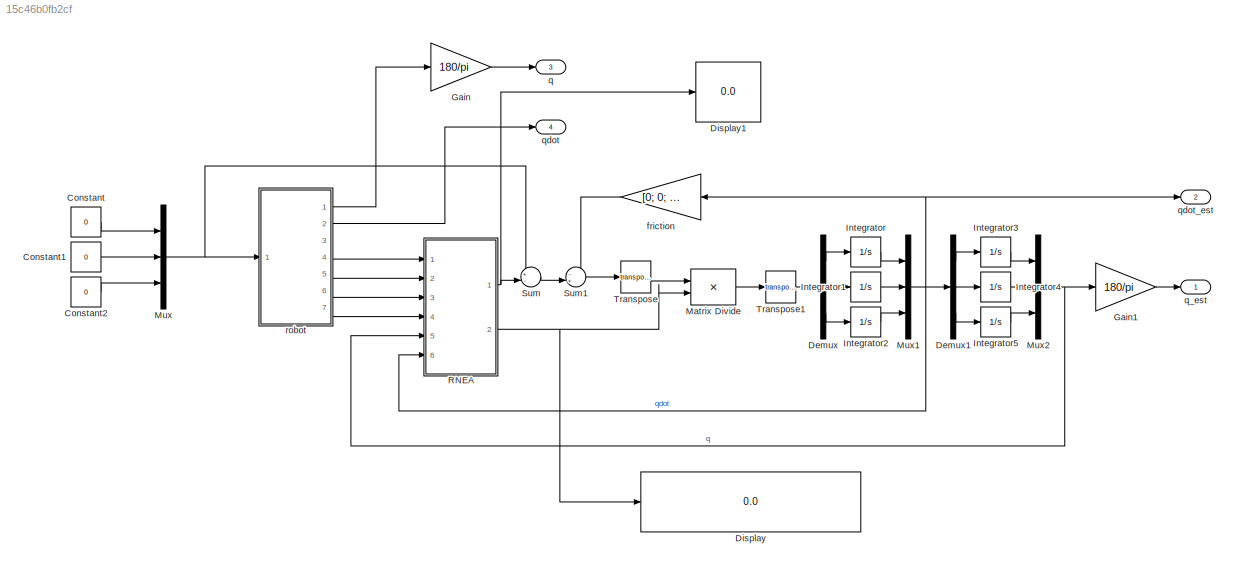
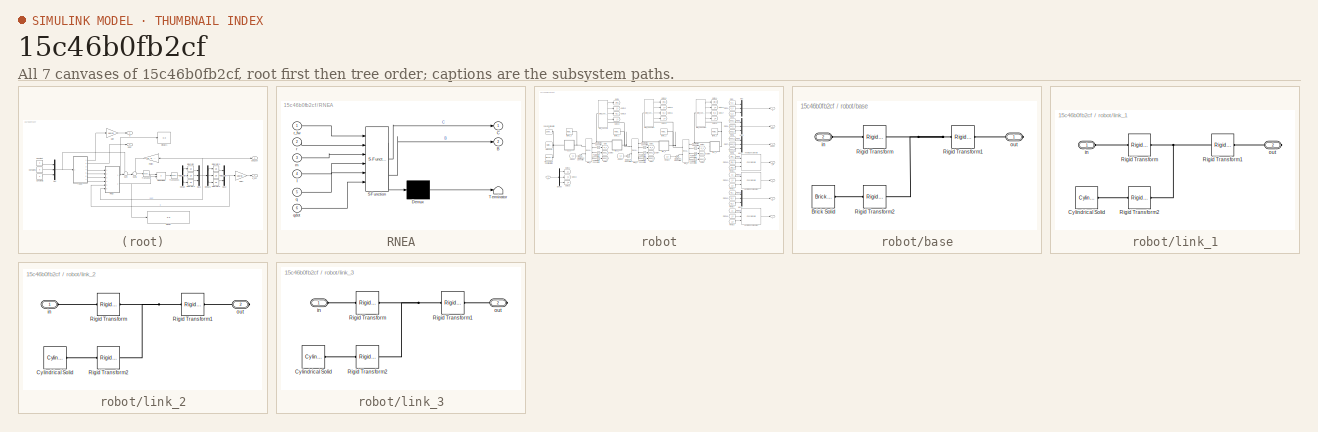
[diagram: thumbnail index - all 7 canvases of the model, root first then tree order]
MODEL slx_15c46b0fb2cf
KIND model
CONFIG AbsTol = 1e-3
CONFIG EnableMultiTasking = on
CONFIG FixedStep = auto
CONFIG InitFcn = parameters;
CONFIG MaxStep = 0.01
CONFIG MinStep = auto
CONFIG RelTol = 1e-3
CONFIG SampleTimeConstraint = Unconstrained
CONFIG SolverName = VariableStepAuto
CONFIG StartTime = 0.0
CONFIG StopTime = 10.0
BLOCK [Constant] Constant
  Value = 0
BLOCK [Constant] Constant1
  Value = 0
BLOCK [Constant] Constant2
  Value = 0
BLOCK [Demux] Demux
  Outputs = 3
  Ports = [1, 3]
BLOCK [Demux] Demux1
  Outputs = 3
  Ports = [1, 3]
BLOCK [Display] Display
  Ports = [1]
BLOCK [Display] Display1
  Ports = [1]
BLOCK [Gain] Gain
  Gain = 180/pi
BLOCK [Gain] Gain1
  Gain = 180/pi
BLOCK [Integrator] Integrator
  Ports = [1, 1]
BLOCK [Integrator] Integrator1
  Ports = [1, 1]
BLOCK [Integrator] Integrator2
  Ports = [1, 1]
BLOCK [Integrator] Integrator3
  InitialCondition = q1_init
  Ports = [1, 1]
BLOCK [Integrator] Integrator4
  InitialCondition = q2_init
  Ports = [1, 1]
BLOCK [Integrator] Integrator5
  InitialCondition = q3_init
  Ports = [1, 1]
BLOCK [Product] Matrix Divide
  Inputs = */
  Multiplication = Matrix(*)
  Ports = [2, 1]
BLOCK [Mux] Mux
  DisplayOption = bar
  Inputs = 3
  Ports = [3, 1]
BLOCK [Mux] Mux1
  DisplayOption = bar
  Inputs = 3
  Ports = [3, 1]
BLOCK [Mux] Mux2
  DisplayOption = bar
  Inputs = 3
  Ports = [3, 1]
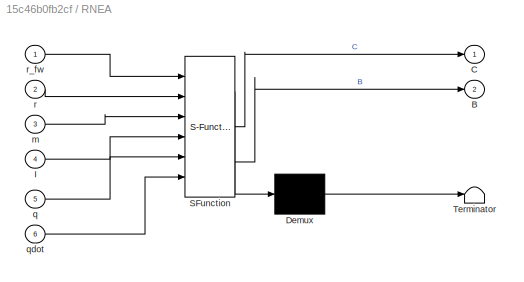
BLOCK [SubSystem] RNEA
  ErrorFcn = Stateflow.Translate.translate
  PermitHierarchicalResolution = ExplicitOnly
  Ports = [6, 2]
  RequestExecContextInheritance = off
  SFBlockType = MATLAB Function
  TreatAsAtomicUnit = on
BLOCK [Demux] RNEA/ Demux 
  Outputs = 1
  Ports = [1, 1]
BLOCK [S-Function] RNEA/ SFunction 
  EnableBusSupport = on
  FunctionName = sf_sfun
  Parameters = g
  PortCounts = [6 3]
  Ports = [6, 3]
  SFcnIsStateOwnerBlock = off
  SFunctionDeploymentMode = off
  Tag = Stateflow S-Function 2
BLOCK [Terminator] RNEA/ Terminator 
BLOCK [Outport] RNEA/B
  Port = 2
BLOCK [Outport] RNEA/C
BLOCK [Inport] RNEA/I
  Port = 4
BLOCK [Inport] RNEA/m
  Port = 3
BLOCK [Inport] RNEA/q
  Port = 5
BLOCK [Inport] RNEA/qdot
  Port = 6
BLOCK [Inport] RNEA/r
  Port = 2
BLOCK [Inport] RNEA/r_fw
BLOCK [Sum] Sum
  Inputs = +-|
  Ports = [2, 1]
BLOCK [Sum] Sum1
  Inputs = -+|
  Ports = [2, 1]
BLOCK [Math] Transpose
  Operator = transpose
  Ports = [1, 1]
BLOCK [Math] Transpose1
  Operator = transpose
  Ports = [1, 1]
BLOCK [Gain] friction
  Gain = [0; 0; 0]
BLOCK [Outport] q
  Port = 3
BLOCK [Outport] q_est
  PortDimensions = [3,1]
BLOCK [Outport] qdot
  Port = 4
BLOCK [Outport] qdot_est
  Port = 2
  PortDimensions = [3,1]
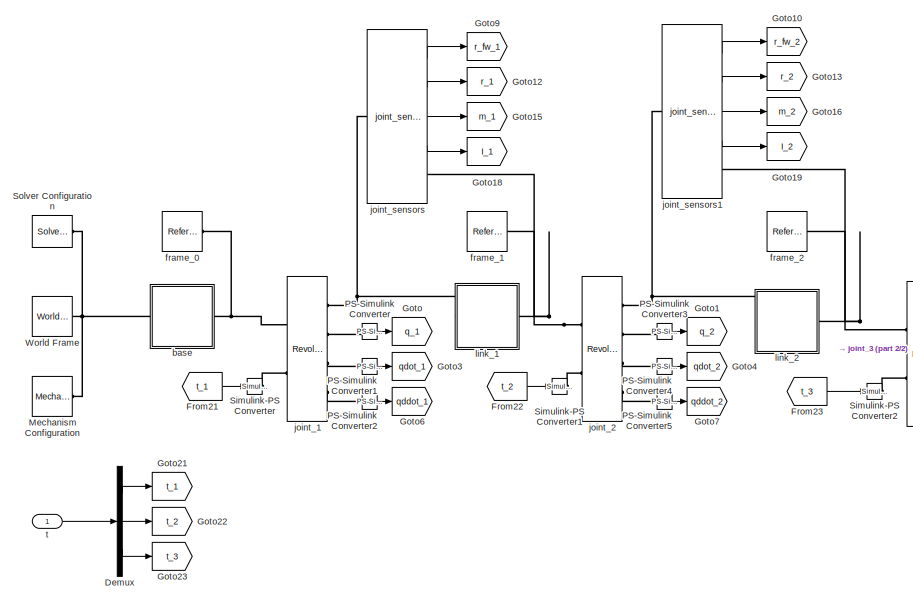
[diagram: robot - part 1/2, middle left region]
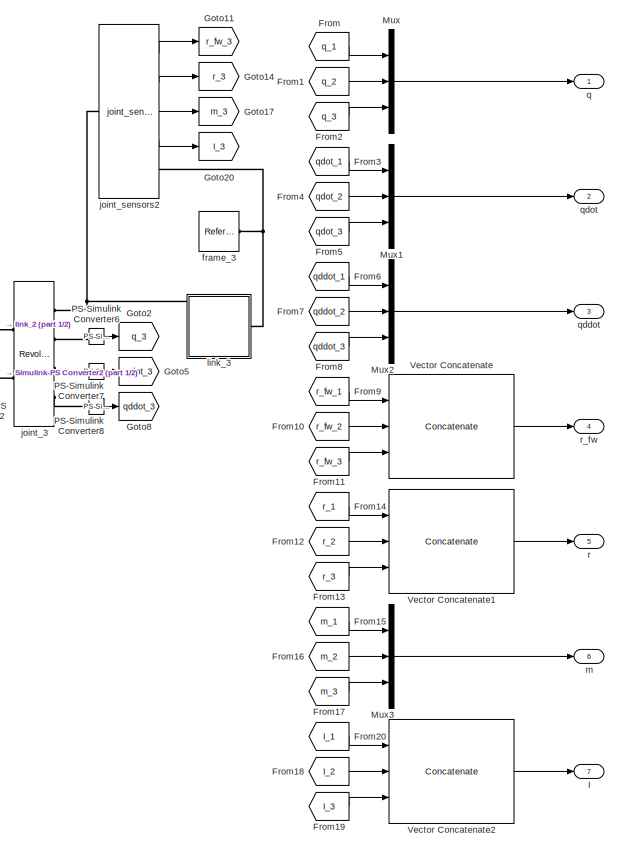
[diagram: robot - part 2/2, right side, full height]
BLOCK [SubSystem] robot
  Ports = [1, 7]
  RequestExecContextInheritance = off
BLOCK [Demux] robot/Demux
  Outputs = 3
  Ports = [1, 3]
BLOCK [From] robot/From
  GotoTag = q_1
BLOCK [From] robot/From1
  GotoTag = q_2
BLOCK [From] robot/From10
  GotoTag = r_fw_2
BLOCK [From] robot/From11
  GotoTag = r_fw_3
BLOCK [From] robot/From12
  GotoTag = r_2
BLOCK [From] robot/From13
  GotoTag = r_3
BLOCK [From] robot/From14
  GotoTag = r_1
BLOCK [From] robot/From15
  GotoTag = m_1
BLOCK [From] robot/From16
  GotoTag = m_2
BLOCK [From] robot/From17
  GotoTag = m_3
BLOCK [From] robot/From18
  GotoTag = I_2
BLOCK [From] robot/From19
  GotoTag = I_3
BLOCK [From] robot/From2
  GotoTag = q_3
BLOCK [From] robot/From20
  GotoTag = I_1
BLOCK [From] robot/From21
  GotoTag = t_1
BLOCK [From] robot/From22
  GotoTag = t_2
BLOCK [From] robot/From23
  GotoTag = t_3
BLOCK [From] robot/From3
  GotoTag = qdot_1
BLOCK [From] robot/From4
  GotoTag = qdot_2
BLOCK [From] robot/From5
  GotoTag = qdot_3
BLOCK [From] robot/From6
  GotoTag = qddot_1
BLOCK [From] robot/From7
  GotoTag = qddot_2
BLOCK [From] robot/From8
  GotoTag = qddot_3
BLOCK [From] robot/From9
  GotoTag = r_fw_1
BLOCK [Goto] robot/Goto
  GotoTag = q_1
BLOCK [Goto] robot/Goto1
  GotoTag = q_2
BLOCK [Goto] robot/Goto10
  GotoTag = r_fw_2
BLOCK [Goto] robot/Goto11
  GotoTag = r_fw_3
BLOCK [Goto] robot/Goto12
  GotoTag = r_1
BLOCK [Goto] robot/Goto13
  GotoTag = r_2
BLOCK [Goto] robot/Goto14
  GotoTag = r_3
BLOCK [Goto] robot/Goto15
  GotoTag = m_1
BLOCK [Goto] robot/Goto16
  GotoTag = m_2
BLOCK [Goto] robot/Goto17
  GotoTag = m_3
BLOCK [Goto] robot/Goto18
  GotoTag = I_1
BLOCK [Goto] robot/Goto19
  GotoTag = I_2
BLOCK [Goto] robot/Goto2
  GotoTag = q_3
BLOCK [Goto] robot/Goto20
  GotoTag = I_3
BLOCK [Goto] robot/Goto21
  GotoTag = t_1
BLOCK [Goto] robot/Goto22
  GotoTag = t_2
BLOCK [Goto] robot/Goto23
  GotoTag = t_3
BLOCK [Goto] robot/Goto3
  GotoTag = qdot_1
BLOCK [Goto] robot/Goto4
  GotoTag = qdot_2
BLOCK [Goto] robot/Goto5
  GotoTag = qdot_3
BLOCK [Goto] robot/Goto6
  GotoTag = qddot_1
BLOCK [Goto] robot/Goto7
  GotoTag = qddot_2
BLOCK [Goto] robot/Goto8
  GotoTag = qddot_3
BLOCK [Goto] robot/Goto9
  GotoTag = r_fw_1
BLOCK [Outport] robot/I
  Port = 7
BLOCK [Reference] robot/Mechanism Configuration  REF=sm_lib/Utilities/Mechanism
Configuration
  Ports = [0, 0, 0, 0, 0, 0, 1]
  SourceBlock = sm_lib/Utilities/Mechanism\nConfiguration
  SourceProductName = Multibody
  SourceType = Mechanism\nConfiguration
BLOCK [Mux] robot/Mux
  DisplayOption = bar
  Inputs = 3
  Ports = [3, 1]
BLOCK [Mux] robot/Mux1
  DisplayOption = bar
  Inputs = 3
  Ports = [3, 1]
BLOCK [Mux] robot/Mux2
  DisplayOption = bar
  Inputs = 3
  Ports = [3, 1]
BLOCK [Mux] robot/Mux3
  DisplayOption = bar
  Inputs = 3
  Ports = [3, 1]
BLOCK [Reference] robot/PS-Simulink Converter  REF=nesl_utility/PS-Simulink
Converter
  Ports = [0, 1, 0, 0, 0, 1]
  SourceBlock = nesl_utility/PS-Simulink\nConverter
  SourceProductBaseCode = SS
  SourceType = PS-Simulink\nConverter
BLOCK [Reference] robot/PS-Simulink Converter1  REF=nesl_utility/PS-Simulink
Converter
  Ports = [0, 1, 0, 0, 0, 1]
  SourceBlock = nesl_utility/PS-Simulink\nConverter
  SourceProductBaseCode = SS
  SourceType = PS-Simulink\nConverter
BLOCK [Reference] robot/PS-Simulink Converter2  REF=nesl_utility/PS-Simulink
Converter
  Ports = [0, 1, 0, 0, 0, 1]
  SourceBlock = nesl_utility/PS-Simulink\nConverter
  SourceProductBaseCode = SS
  SourceType = PS-Simulink\nConverter
BLOCK [Reference] robot/PS-Simulink Converter3  REF=nesl_utility/PS-Simulink
Converter
  Ports = [0, 1, 0, 0, 0, 1]
  SourceBlock = nesl_utility/PS-Simulink\nConverter
  SourceProductBaseCode = SS
  SourceType = PS-Simulink\nConverter
BLOCK [Reference] robot/PS-Simulink Converter4  REF=nesl_utility/PS-Simulink
Converter
  Ports = [0, 1, 0, 0, 0, 1]
  SourceBlock = nesl_utility/PS-Simulink\nConverter
  SourceProductBaseCode = SS
  SourceType = PS-Simulink\nConverter
BLOCK [Reference] robot/PS-Simulink Converter5  REF=nesl_utility/PS-Simulink
Converter
  Ports = [0, 1, 0, 0, 0, 1]
  SourceBlock = nesl_utility/PS-Simulink\nConverter
  SourceProductBaseCode = SS
  SourceType = PS-Simulink\nConverter
BLOCK [Reference] robot/PS-Simulink Converter6  REF=nesl_utility/PS-Simulink
Converter
  Ports = [0, 1, 0, 0, 0, 1]
  SourceBlock = nesl_utility/PS-Simulink\nConverter
  SourceProductBaseCode = SS
  SourceType = PS-Simulink\nConverter
BLOCK [Reference] robot/PS-Simulink Converter7  REF=nesl_utility/PS-Simulink
Converter
  Ports = [0, 1, 0, 0, 0, 1]
  SourceBlock = nesl_utility/PS-Simulink\nConverter
  SourceProductBaseCode = SS
  SourceType = PS-Simulink\nConverter
BLOCK [Reference] robot/PS-Simulink Converter8  REF=nesl_utility/PS-Simulink
Converter
  Ports = [0, 1, 0, 0, 0, 1]
  SourceBlock = nesl_utility/PS-Simulink\nConverter
  SourceProductBaseCode = SS
  SourceType = PS-Simulink\nConverter
BLOCK [Reference] robot/Simulink-PS Converter  REF=nesl_utility/Simulink-PS
Converter
  Ports = [1, 0, 0, 0, 0, 0, 1]
  SourceBlock = nesl_utility/Simulink-PS\nConverter
  SourceProductBaseCode = SS
  SourceType = Simulink-PS\nConverter
BLOCK [Reference] robot/Simulink-PS Converter1  REF=nesl_utility/Simulink-PS
Converter
  Ports = [1, 0, 0, 0, 0, 0, 1]
  SourceBlock = nesl_utility/Simulink-PS\nConverter
  SourceProductBaseCode = SS
  SourceType = Simulink-PS\nConverter
BLOCK [Reference] robot/Simulink-PS Converter2  REF=nesl_utility/Simulink-PS
Converter
  Ports = [1, 0, 0, 0, 0, 0, 1]
  SourceBlock = nesl_utility/Simulink-PS\nConverter
  SourceProductBaseCode = SS
  SourceType = Simulink-PS\nConverter
BLOCK [Reference] robot/Solver Configuration  REF=nesl_utility/Solver
Configuration
  Ports = [0, 0, 0, 0, 0, 0, 1]
  SourceBlock = nesl_utility/Solver\nConfiguration
  SourceProductName = Utilities
  SourceType = Solver\nConfiguration
BLOCK [Concatenate] robot/Vector Concatenate
  ConcatenateDimension = 2
  Mode = Multidimensional array
  NumInputs = 3
  Ports = [3, 1]
BLOCK [Concatenate] robot/Vector Concatenate1
  ConcatenateDimension = 2
  Mode = Multidimensional array
  NumInputs = 3
  Ports = [3, 1]
BLOCK [Concatenate] robot/Vector Concatenate2
  Mode = Multidimensional array
  NumInputs = 3
  Ports = [3, 1]
BLOCK [Reference] robot/World Frame  REF=sm_lib/Frames and
Transforms/World Frame
  Ports = [0, 0, 0, 0, 0, 0, 1]
  SourceBlock = sm_lib/Frames and\nTransforms/World Frame
  SourceProductName = Multibody
  SourceType = World Frame
BLOCK [SubSystem] robot/base
  Ports = [0, 0, 0, 0, 0, 1, 1]
  RequestExecContextInheritance = off
BLOCK [Reference] robot/base/Brick Solid  REF=sm_lib/Body Elements/Brick Solid
  Ports = [0, 0, 0, 0, 0, 0, 1]
  SourceBlock = sm_lib/Body Elements/Brick Solid
  SourceProductBaseCode = MS
  SourceType = Brick Solid
BLOCK [Reference] robot/base/Rigid Transform  REF=sm_lib/Frames and
Transforms/Rigid
Transform
  Ports = [0, 0, 0, 0, 0, 1, 1]
  SourceBlock = sm_lib/Frames and\nTransforms/Rigid\nTransform
  SourceProductBaseCode = MS
  SourceType = Rigid\nTransform
BLOCK [Reference] robot/base/Rigid Transform1  REF=sm_lib/Frames and
Transforms/Rigid
Transform
  Ports = [0, 0, 0, 0, 0, 1, 1]
  SourceBlock = sm_lib/Frames and\nTransforms/Rigid\nTransform
  SourceProductBaseCode = MS
  SourceType = Rigid\nTransform
BLOCK [Reference] robot/base/Rigid Transform2  REF=sm_lib/Frames and
Transforms/Rigid
Transform
  Ports = [0, 0, 0, 0, 0, 1, 1]
  SourceBlock = sm_lib/Frames and\nTransforms/Rigid\nTransform
  SourceProductBaseCode = MS
  SourceType = Rigid\nTransform
BLOCK [PMIOPort] robot/base/in
  Port = 2
  Side = Left
BLOCK [PMIOPort] robot/base/out
  Side = Right
BLOCK [Reference] robot/frame_0  REF=sm_lib/Frames and
Transforms/Reference
Frame
  Ports = [0, 0, 0, 0, 0, 0, 1]
  SourceBlock = sm_lib/Frames and\nTransforms/Reference\nFrame
  SourceProductBaseCode = MS
  SourceType = Reference\nFrame
BLOCK [Reference] robot/frame_1  REF=sm_lib/Frames and
Transforms/Reference
Frame
  Ports = [0, 0, 0, 0, 0, 0, 1]
  SourceBlock = sm_lib/Frames and\nTransforms/Reference\nFrame
  SourceProductBaseCode = MS
  SourceType = Reference\nFrame
BLOCK [Reference] robot/frame_2  REF=sm_lib/Frames and
Transforms/Reference
Frame
  Ports = [0, 0, 0, 0, 0, 0, 1]
  SourceBlock = sm_lib/Frames and\nTransforms/Reference\nFrame
  SourceProductBaseCode = MS
  SourceType = Reference\nFrame
BLOCK [Reference] robot/frame_3  REF=sm_lib/Frames and
Transforms/Reference
Frame
  Ports = [0, 0, 0, 0, 0, 0, 1]
  SourceBlock = sm_lib/Frames and\nTransforms/Reference\nFrame
  SourceProductBaseCode = MS
  SourceType = Reference\nFrame
BLOCK [Reference] robot/joint_1  REF=sm_lib/Joints/Revolute Joint
  Ports = [0, 0, 0, 0, 0, 2, 4]
  SourceBlock = sm_lib/Joints/Revolute Joint
  SourceProductBaseCode = MS
  SourceType = Revolute Joint
BLOCK [Reference] robot/joint_2  REF=sm_lib/Joints/Revolute Joint
  Ports = [0, 0, 0, 0, 0, 2, 4]
  SourceBlock = sm_lib/Joints/Revolute Joint
  SourceProductBaseCode = MS
  SourceType = Revolute Joint
BLOCK [Reference] robot/joint_3  REF=sm_lib/Joints/Revolute Joint
  Ports = [0, 0, 0, 0, 0, 2, 4]
  SourceBlock = sm_lib/Joints/Revolute Joint
  SourceProductBaseCode = MS
  SourceType = Revolute Joint
BLOCK [Reference] robot/joint_sensors  REF=robot_arms_library/joint_sensors  (lib defined in slx_32957a7d959d)
  Ports = [0, 4, 0, 0, 0, 1, 1]
  SourceBlock = robot_arms_library/joint_sensors
BLOCK [Reference] robot/joint_sensors1  REF=robot_arms_library/joint_sensors  (lib defined in slx_32957a7d959d)
  Ports = [0, 4, 0, 0, 0, 1, 1]
  SourceBlock = robot_arms_library/joint_sensors
BLOCK [Reference] robot/joint_sensors2  REF=robot_arms_library/joint_sensors  (lib defined in slx_32957a7d959d)
  Ports = [0, 4, 0, 0, 0, 1, 1]
  SourceBlock = robot_arms_library/joint_sensors
BLOCK [SubSystem] robot/link_1
  Ports = [0, 0, 0, 0, 0, 1, 1]
  RequestExecContextInheritance = off
BLOCK [Reference] robot/link_1/Cylindrical Solid  REF=sm_lib/Body Elements/Cylindrical Solid
  Ports = [0, 0, 0, 0, 0, 0, 1]
  SourceBlock = sm_lib/Body Elements/Cylindrical Solid
  SourceProductBaseCode = MS
  SourceType = Cylindrical Solid
BLOCK [Reference] robot/link_1/Rigid Transform  REF=sm_lib/Frames and
Transforms/Rigid
Transform
  Ports = [0, 0, 0, 0, 0, 1, 1]
  SourceBlock = sm_lib/Frames and\nTransforms/Rigid\nTransform
  SourceProductBaseCode = MS
  SourceType = Rigid\nTransform
BLOCK [Reference] robot/link_1/Rigid Transform1  REF=sm_lib/Frames and
Transforms/Rigid
Transform
  Ports = [0, 0, 0, 0, 0, 1, 1]
  SourceBlock = sm_lib/Frames and\nTransforms/Rigid\nTransform
  SourceProductBaseCode = MS
  SourceType = Rigid\nTransform
BLOCK [Reference] robot/link_1/Rigid Transform2  REF=sm_lib/Frames and
Transforms/Rigid
Transform
  Ports = [0, 0, 0, 0, 0, 1, 1]
  SourceBlock = sm_lib/Frames and\nTransforms/Rigid\nTransform
  SourceProductBaseCode = MS
  SourceType = Rigid\nTransform
BLOCK [PMIOPort] robot/link_1/in
  Side = Left
BLOCK [PMIOPort] robot/link_1/out
  Port = 2
  Side = Right
BLOCK [SubSystem] robot/link_2
  Ports = [0, 0, 0, 0, 0, 1, 1]
  RequestExecContextInheritance = off
BLOCK [Reference] robot/link_2/Cylindrical Solid  REF=sm_lib/Body Elements/Cylindrical Solid
  Ports = [0, 0, 0, 0, 0, 0, 1]
  SourceBlock = sm_lib/Body Elements/Cylindrical Solid
  SourceProductBaseCode = MS
  SourceType = Cylindrical Solid
BLOCK [Reference] robot/link_2/Rigid Transform  REF=sm_lib/Frames and
Transforms/Rigid
Transform
  Ports = [0, 0, 0, 0, 0, 1, 1]
  SourceBlock = sm_lib/Frames and\nTransforms/Rigid\nTransform
  SourceProductBaseCode = MS
  SourceType = Rigid\nTransform
BLOCK [Reference] robot/link_2/Rigid Transform1  REF=sm_lib/Frames and
Transforms/Rigid
Transform
  Ports = [0, 0, 0, 0, 0, 1, 1]
  SourceBlock = sm_lib/Frames and\nTransforms/Rigid\nTransform
  SourceProductBaseCode = MS
  SourceType = Rigid\nTransform
BLOCK [Reference] robot/link_2/Rigid Transform2  REF=sm_lib/Frames and
Transforms/Rigid
Transform
  Ports = [0, 0, 0, 0, 0, 1, 1]
  SourceBlock = sm_lib/Frames and\nTransforms/Rigid\nTransform
  SourceProductBaseCode = MS
  SourceType = Rigid\nTransform
BLOCK [PMIOPort] robot/link_2/in
  Side = Left
BLOCK [PMIOPort] robot/link_2/out
  Port = 2
  Side = Right
BLOCK [SubSystem] robot/link_3
  Ports = [0, 0, 0, 0, 0, 1, 1]
  RequestExecContextInheritance = off
BLOCK [Reference] robot/link_3/Cylindrical Solid  REF=sm_lib/Body Elements/Cylindrical Solid
  Ports = [0, 0, 0, 0, 0, 0, 1]
  SourceBlock = sm_lib/Body Elements/Cylindrical Solid
  SourceProductBaseCode = MS
  SourceType = Cylindrical Solid
BLOCK [Reference] robot/link_3/Rigid Transform  REF=sm_lib/Frames and
Transforms/Rigid
Transform
  Ports = [0, 0, 0, 0, 0, 1, 1]
  SourceBlock = sm_lib/Frames and\nTransforms/Rigid\nTransform
  SourceProductBaseCode = MS
  SourceType = Rigid\nTransform
BLOCK [Reference] robot/link_3/Rigid Transform1  REF=sm_lib/Frames and
Transforms/Rigid
Transform
  Ports = [0, 0, 0, 0, 0, 1, 1]
  SourceBlock = sm_lib/Frames and\nTransforms/Rigid\nTransform
  SourceProductBaseCode = MS
  SourceType = Rigid\nTransform
BLOCK [Reference] robot/link_3/Rigid Transform2  REF=sm_lib/Frames and
Transforms/Rigid
Transform
  Ports = [0, 0, 0, 0, 0, 1, 1]
  SourceBlock = sm_lib/Frames and\nTransforms/Rigid\nTransform
  SourceProductBaseCode = MS
  SourceType = Rigid\nTransform
BLOCK [PMIOPort] robot/link_3/in
  Side = Left
BLOCK [PMIOPort] robot/link_3/out
  Port = 2
  Side = Right
BLOCK [Outport] robot/m
  Port = 6
BLOCK [Outport] robot/q
  PortDimensions = [3,1]
BLOCK [Outport] robot/qddot
  Port = 3
  PortDimensions = [3,1]
BLOCK [Outport] robot/qdot
  Port = 2
  PortDimensions = [3,1]
BLOCK [Outport] robot/r
  Port = 5
BLOCK [Outport] robot/r_fw
  Port = 4
BLOCK [Inport] robot/t
LINE Constant1:1 -> Mux:2
LINE Constant2:1 -> Mux:3
LINE Constant:1 -> Mux:1
LINE Demux1:1 -> Integrator3:1
LINE Demux1:2 -> Integrator4:1
LINE Demux1:3 -> Integrator5:1
LINE Demux:1 -> Integrator:1
LINE Demux:2 -> Integrator1:1
LINE Demux:3 -> Integrator2:1
LINE Gain1:1 -> q_est:1
LINE Gain:1 -> q:1
LINE Integrator1:1 -> Mux1:2
LINE Integrator2:1 -> Mux1:3
LINE Integrator3:1 -> Mux2:1
LINE Integrator4:1 -> Mux2:2
LINE Integrator5:1 -> Mux2:3
LINE Integrator:1 -> Mux1:1
LINE Matrix Divide:1 -> Transpose1:1
NET Mux1:1 -> Demux1:1, RNEA:6, friction:1, qdot_est:1
NET Mux2:1 -> Gain1:1, RNEA:5
NET Mux:1 -> Sum:1, robot:1
NET RNEA:1 -> Display1:1, Sum:2
NET RNEA:2 -> Display:1, Matrix Divide:2
LINE Sum1:1 -> Transpose:1
LINE Sum:1 -> Sum1:2
LINE Transpose1:1 -> Demux:1
LINE Transpose:1 -> Matrix Divide:1
LINE friction:1 -> Sum1:1
LINE robot/Demux:1 -> robot/Goto21:1
LINE robot/Demux:2 -> robot/Goto22:1
LINE robot/Demux:3 -> robot/Goto23:1
LINE robot/From10:1 -> robot/Vector Concatenate:2
LINE robot/From11:1 -> robot/Vector Concatenate:3
LINE robot/From12:1 -> robot/Vector Concatenate1:2
LINE robot/From13:1 -> robot/Vector Concatenate1:3
LINE robot/From14:1 -> robot/Vector Concatenate1:1
LINE robot/From15:1 -> robot/Mux3:1
LINE robot/From16:1 -> robot/Mux3:2
LINE robot/From17:1 -> robot/Mux3:3
LINE robot/From18:1 -> robot/Vector Concatenate2:2
LINE robot/From19:1 -> robot/Vector Concatenate2:3
LINE robot/From1:1 -> robot/Mux:2
LINE robot/From20:1 -> robot/Vector Concatenate2:1
LINE robot/From21:1 -> robot/Simulink-PS Converter:1
LINE robot/From22:1 -> robot/Simulink-PS Converter1:1
LINE robot/From23:1 -> robot/Simulink-PS Converter2:1
LINE robot/From2:1 -> robot/Mux:3
LINE robot/From3:1 -> robot/Mux1:1
LINE robot/From4:1 -> robot/Mux1:2
LINE robot/From5:1 -> robot/Mux1:3
LINE robot/From6:1 -> robot/Mux2:1
LINE robot/From7:1 -> robot/Mux2:2
LINE robot/From8:1 -> robot/Mux2:3
LINE robot/From9:1 -> robot/Vector Concatenate:1
LINE robot/From:1 -> robot/Mux:1
LINE robot/Mux1:1 -> robot/qdot:1
LINE robot/Mux2:1 -> robot/qddot:1
LINE robot/Mux3:1 -> robot/m:1
LINE robot/Mux:1 -> robot/q:1
LINE robot/PS-Simulink Converter1:1 -> robot/Goto3:1
LINE robot/PS-Simulink Converter2:1 -> robot/Goto6:1
LINE robot/PS-Simulink Converter3:1 -> robot/Goto1:1
LINE robot/PS-Simulink Converter4:1 -> robot/Goto4:1
LINE robot/PS-Simulink Converter5:1 -> robot/Goto7:1
LINE robot/PS-Simulink Converter6:1 -> robot/Goto2:1
LINE robot/PS-Simulink Converter7:1 -> robot/Goto5:1
LINE robot/PS-Simulink Converter8:1 -> robot/Goto8:1
LINE robot/PS-Simulink Converter:1 -> robot/Goto:1
LINE robot/Vector Concatenate1:1 -> robot/r:1
LINE robot/Vector Concatenate2:1 -> robot/I:1
LINE robot/Vector Concatenate:1 -> robot/r_fw:1
LINE robot/joint_sensors1:1 -> robot/Goto10:1
LINE robot/joint_sensors1:2 -> robot/Goto13:1
LINE robot/joint_sensors1:3 -> robot/Goto16:1
LINE robot/joint_sensors1:4 -> robot/Goto19:1
LINE robot/joint_sensors2:1 -> robot/Goto11:1
LINE robot/joint_sensors2:2 -> robot/Goto14:1
LINE robot/joint_sensors2:3 -> robot/Goto17:1
LINE robot/joint_sensors2:4 -> robot/Goto20:1
LINE robot/joint_sensors:1 -> robot/Goto9:1
LINE robot/joint_sensors:2 -> robot/Goto12:1
LINE robot/joint_sensors:3 -> robot/Goto15:1
LINE robot/joint_sensors:4 -> robot/Goto18:1
LINE robot/t:1 -> robot/Demux:1
LINE robot:1 -> Gain:1
LINE robot:2 -> qdot:1
LINE robot:4 -> RNEA:1
LINE robot:5 -> RNEA:2
LINE robot:6 -> RNEA:3
LINE robot:7 -> RNEA:4
PNET net1: robot/Mechanism Configuration:RConn1 -- robot/Solver Configuration:RConn1 -- robot/World Frame:RConn1 -- robot/base:LConn1
PLINE robot/PS-Simulink Converter1:LConn1 -- robot/joint_1:RConn3
PLINE robot/PS-Simulink Converter2:LConn1 -- robot/joint_1:RConn4
PLINE robot/PS-Simulink Converter3:LConn1 -- robot/joint_2:RConn2
PLINE robot/PS-Simulink Converter4:LConn1 -- robot/joint_2:RConn3
PLINE robot/PS-Simulink Converter5:LConn1 -- robot/joint_2:RConn4
PLINE robot/PS-Simulink Converter6:LConn1 -- robot/joint_3:RConn2
PLINE robot/PS-Simulink Converter7:LConn1 -- robot/joint_3:RConn3
PLINE robot/PS-Simulink Converter8:LConn1 -- robot/joint_3:RConn4
PLINE robot/PS-Simulink Converter:LConn1 -- robot/joint_1:RConn2
PLINE robot/Simulink-PS Converter1:RConn1 -- robot/joint_2:LConn2
PLINE robot/Simulink-PS Converter2:RConn1 -- robot/joint_3:LConn2
PLINE robot/Simulink-PS Converter:RConn1 -- robot/joint_1:LConn2
PLINE robot/base/Brick Solid:RConn1 -- robot/base/Rigid Transform2:LConn1
PNET net2: robot/base/Rigid Transform1:LConn1 -- robot/base/Rigid Transform2:RConn1 -- robot/base/Rigid Transform:RConn1
PLINE robot/base/Rigid Transform1:RConn1 -- robot/base/out:RConn1
PLINE robot/base/Rigid Transform:LConn1 -- robot/base/in:RConn1
PNET net3: robot/base:RConn1 -- robot/frame_0:RConn1 -- robot/joint_1:LConn1
PNET net4: robot/frame_1:RConn1 -- robot/joint_2:LConn1 -- robot/joint_sensors:RConn1 -- robot/link_1:RConn1
PNET net5: robot/frame_2:RConn1 -- robot/joint_3:LConn1 -- robot/joint_sensors1:RConn1 -- robot/link_2:RConn1
PNET net6: robot/frame_3:RConn1 -- robot/joint_sensors2:RConn1 -- robot/link_3:RConn1
PNET net7: robot/joint_1:RConn1 -- robot/joint_sensors:LConn1 -- robot/link_1:LConn1
PNET net8: robot/joint_2:RConn1 -- robot/joint_sensors1:LConn1 -- robot/link_2:LConn1
PNET net9: robot/joint_3:RConn1 -- robot/joint_sensors2:LConn1 -- robot/link_3:LConn1
PLINE robot/link_1/Cylindrical Solid:RConn1 -- robot/link_1/Rigid Transform2:LConn1
PNET net10: robot/link_1/Rigid Transform1:LConn1 -- robot/link_1/Rigid Transform2:RConn1 -- robot/link_1/Rigid Transform:RConn1
PLINE robot/link_1/Rigid Transform1:RConn1 -- robot/link_1/out:RConn1
PLINE robot/link_1/Rigid Transform:LConn1 -- robot/link_1/in:RConn1
PLINE robot/link_2/Cylindrical Solid:RConn1 -- robot/link_2/Rigid Transform2:LConn1
PNET net11: robot/link_2/Rigid Transform1:LConn1 -- robot/link_2/Rigid Transform2:RConn1 -- robot/link_2/Rigid Transform:RConn1
PLINE robot/link_2/Rigid Transform1:RConn1 -- robot/link_2/out:RConn1
PLINE robot/link_2/Rigid Transform:LConn1 -- robot/link_2/in:RConn1
PLINE robot/link_3/Cylindrical Solid:RConn1 -- robot/link_3/Rigid Transform2:LConn1
PNET net12: robot/link_3/Rigid Transform1:LConn1 -- robot/link_3/Rigid Transform2:RConn1 -- robot/link_3/Rigid Transform:RConn1
PLINE robot/link_3/Rigid Transform1:RConn1 -- robot/link_3/out:RConn1
PLINE robot/link_3/Rigid Transform:LConn1 -- robot/link_3/in:RConn1
note: NET lines group one-source signal fan-out (src -> all destinations, sorted); 1:1 wires keep LINE; PNET lines group multi-terminal physical nets as a canonical sorted terminal list (undirected conserving connections); 2-terminal nets keep the pairwise PLINE form
CHART RNEA states=1 transitions=1
  STATE_LABEL 'eML_blk_kernel()'
  STATE_LABEL 'SCRIPT:\nfunction [C, B] = fcn(r_fw, r, m, I, q, qdot, g)\nr_bw = r_fw - r;\npddot_init = [0; g; 0];\nalpha = zeros(3,1);\nkr = ones(3,1);\nzm = [zeros(2,3); ones(1,3)];\nIm = zeros(3,1);\ns = RNEA(q, alpha, r, r_bw, kr, zm, m, I, Im);\n[B, C] = s.dynamic_matrices(qdot, pddot_init);\nend'
CHART  states=0 transitions=0
